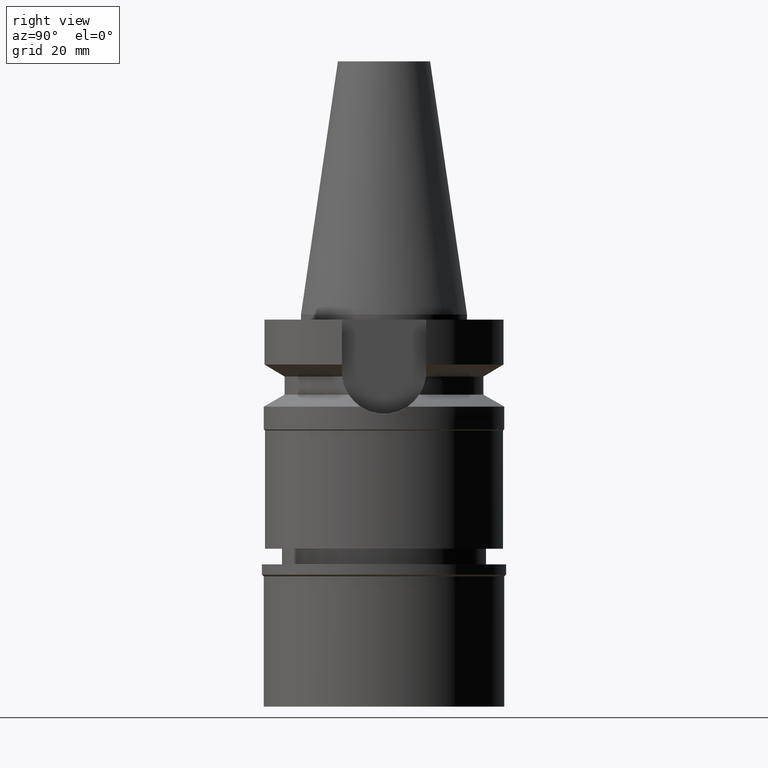
[diagram: clean part render]
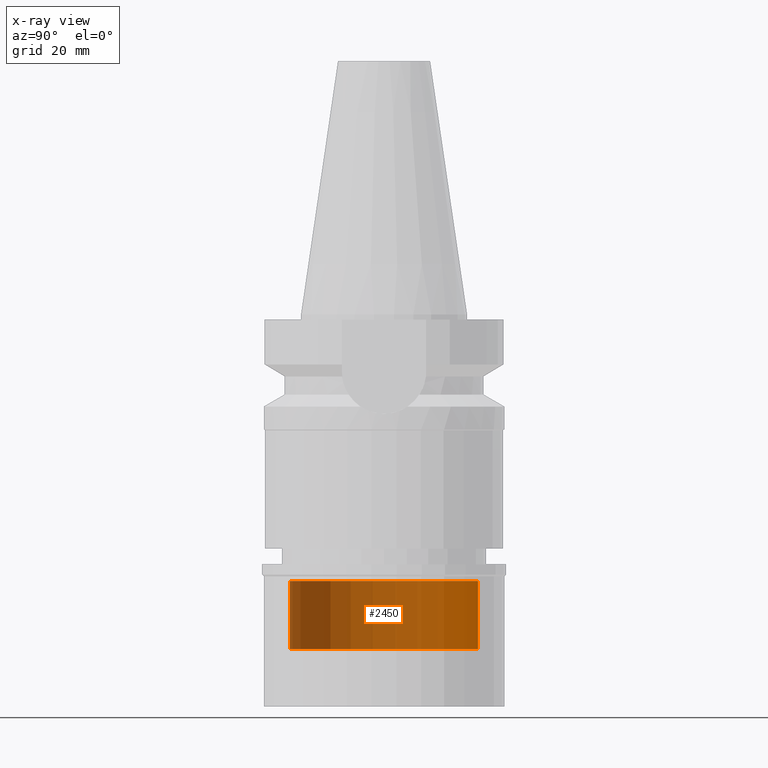
[diagram: x-ray — body ghosted, one internal face saturated and labeled with its STEP entity id]
A machine part, right view, then the same camera in x-ray: the body is ghosted and one INTERNAL B-rep face — a face not visible from any outside direction — is saturated and labeled: STEP entity #2450.
In plain terms, the highlighted cylindrical surface (partial cylindrical patch) has radius 18 mm, axis along (0, 0, -1).
Its self-contained STEP definition (entity closure, byte-faithful):
#53 = CARTESIAN_POINT ( 'NONE',  ( 0.0000000000000000000, 0.0000000000000000000, -64.00000000000000000 ) ) ;
#104 = CARTESIAN_POINT ( 'NONE',  ( 0.0000000000000000000, -18.00000000000000000, -51.00000000000000000 ) ) ;
#114 = DIRECTION ( 'NONE',  ( 0.0000000000000000000, -1.000000000000000000, 0.0000000000000000000 ) ) ;
#188 = DIRECTION ( 'NONE',  ( 0.0000000000000000000, 0.0000000000000000000, -1.000000000000000000 ) ) ;
#204 = LINE ( 'NONE', #1131, #874 ) ;
#249 = DIRECTION ( 'NONE',  ( 0.0000000000000000000, 0.0000000000000000000, -1.000000000000000000 ) ) ;
#368 = EDGE_CURVE ( 'NONE', #1566, #1810, #1570, .T. ) ;
#561 = DIRECTION ( 'NONE',  ( 0.0000000000000000000, 0.0000000000000000000, -1.000000000000000000 ) ) ;
#603 = ORIENTED_EDGE ( 'NONE', *, *, #2704, .T. ) ;
#627 = CARTESIAN_POINT ( 'NONE',  ( 0.0000000000000000000, 18.00000000000000000, -51.00000000000000000 ) ) ;
#651 = AXIS2_PLACEMENT_3D ( 'NONE', #3007, #249, #2780 ) ;
#718 = AXIS2_PLACEMENT_3D ( 'NONE', #53, #2826, #993 ) ;
#874 = VECTOR ( 'NONE', #188, 1000.000000000000000 ) ;
#884 = ORIENTED_EDGE ( 'NONE', *, *, #1061, .F. ) ;
#938 = VERTEX_POINT ( 'NONE', #1244 ) ;
#993 = DIRECTION ( 'NONE',  ( 0.0000000000000000000, 1.000000000000000000, 0.0000000000000000000 ) ) ;
#1061 = EDGE_CURVE ( 'NONE', #1566, #938, #2169, .T. ) ;
#1131 = CARTESIAN_POINT ( 'NONE',  ( 0.0000000000000000000, 18.00000000000000000, -51.00000000000000000 ) ) ;
#1244 = CARTESIAN_POINT ( 'NONE',  ( 0.0000000000000000000, -18.00000000000000000, -64.00000000000000000 ) ) ;
#1289 = CARTESIAN_POINT ( 'NONE',  ( 0.0000000000000000000, 18.00000000000000000, -64.00000000000000000 ) ) ;
#1422 = EDGE_LOOP ( 'NONE', ( #603, #884, #2851, #2025 ) ) ;
#1524 = CYLINDRICAL_SURFACE ( 'NONE', #2728, 18.00000000000000000 ) ;
#1566 = VERTEX_POINT ( 'NONE', #104 ) ;
#1570 = CIRCLE ( 'NONE', #651, 18.00000000000000000 ) ;
#1695 = VERTEX_POINT ( 'NONE', #1289 ) ;
#1726 = CARTESIAN_POINT ( 'NONE',  ( 0.0000000000000000000, -18.00000000000000000, -51.00000000000000000 ) ) ;
#1810 = VERTEX_POINT ( 'NONE', #627 ) ;
#2025 = ORIENTED_EDGE ( 'NONE', *, *, #2213, .T. ) ;
#2169 = LINE ( 'NONE', #1726, #2212 ) ;
#2206 = CARTESIAN_POINT ( 'NONE',  ( 0.0000000000000000000, 0.0000000000000000000, 54.01999999999999602 ) ) ;
#2212 = VECTOR ( 'NONE', #2439, 1000.000000000000000 ) ;
#2213 = EDGE_CURVE ( 'NONE', #1810, #1695, #204, .T. ) ;
#2439 = DIRECTION ( 'NONE',  ( 0.0000000000000000000, 0.0000000000000000000, -1.000000000000000000 ) ) ;
#2450 = ADVANCED_FACE ( 'NONE', ( #2698 ), #1524, .T. ) ;
#2698 = FACE_OUTER_BOUND ( 'NONE', #1422, .T. ) ;
#2704 = EDGE_CURVE ( 'NONE', #1695, #938, #3008, .T. ) ;
#2728 = AXIS2_PLACEMENT_3D ( 'NONE', #2206, #561, #114 ) ;
#2780 = DIRECTION ( 'NONE',  ( 0.0000000000000000000, -1.000000000000000000, 0.0000000000000000000 ) ) ;
#2826 = DIRECTION ( 'NONE',  ( 0.0000000000000000000, 0.0000000000000000000, 1.000000000000000000 ) ) ;
#2851 = ORIENTED_EDGE ( 'NONE', *, *, #368, .T. ) ;
#3007 = CARTESIAN_POINT ( 'NONE',  ( 0.0000000000000000000, 0.0000000000000000000, -51.00000000000000000 ) ) ;
#3008 = CIRCLE ( 'NONE', #718, 18.00000000000000000 ) ;